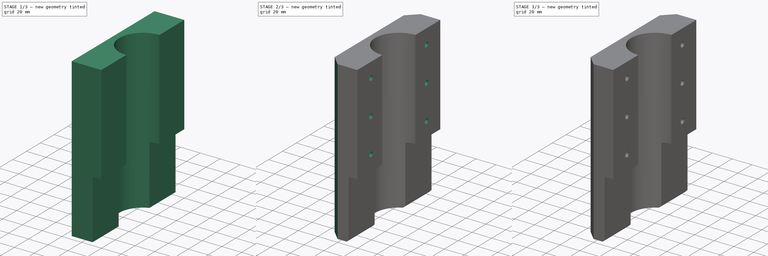
[diagram: build sequence overview — one tinted view per stage of 3, left to right]
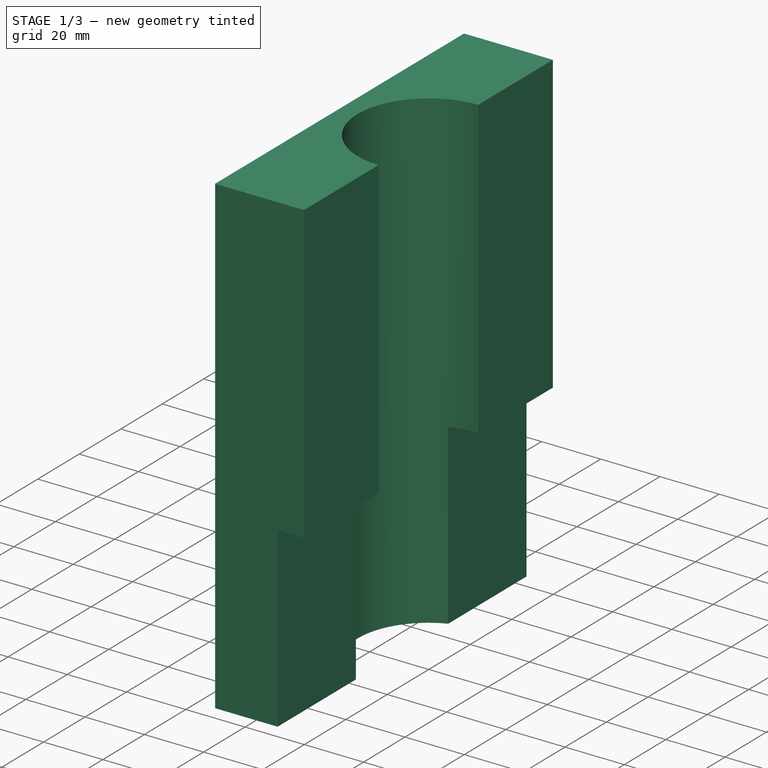
[diagram: stage 1 of 3 — iso view after this stage's code; geometry added in this stage tinted green]
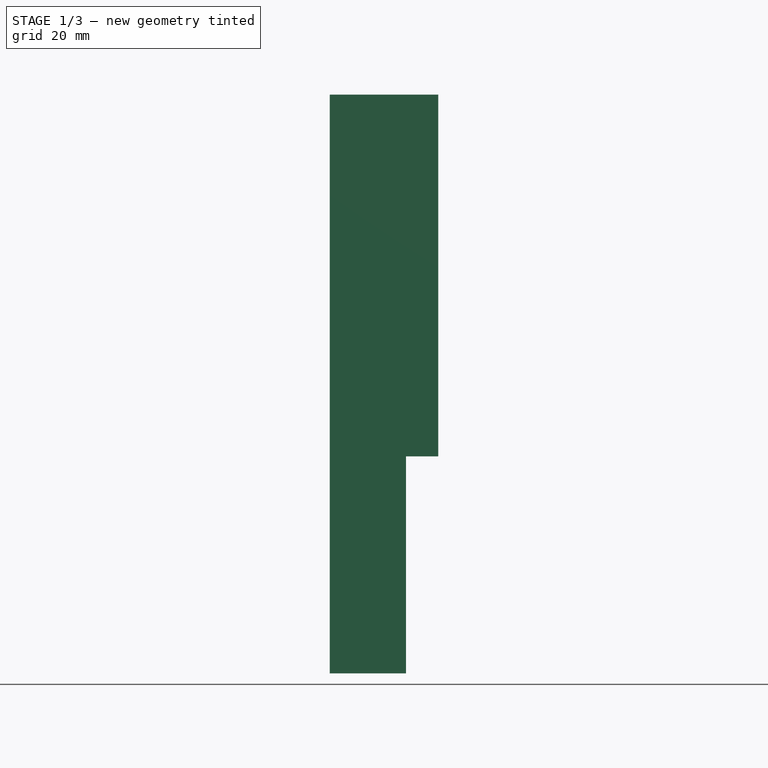
[diagram: stage 1 of 3 — front view after this stage's code; geometry added in this stage tinted green]
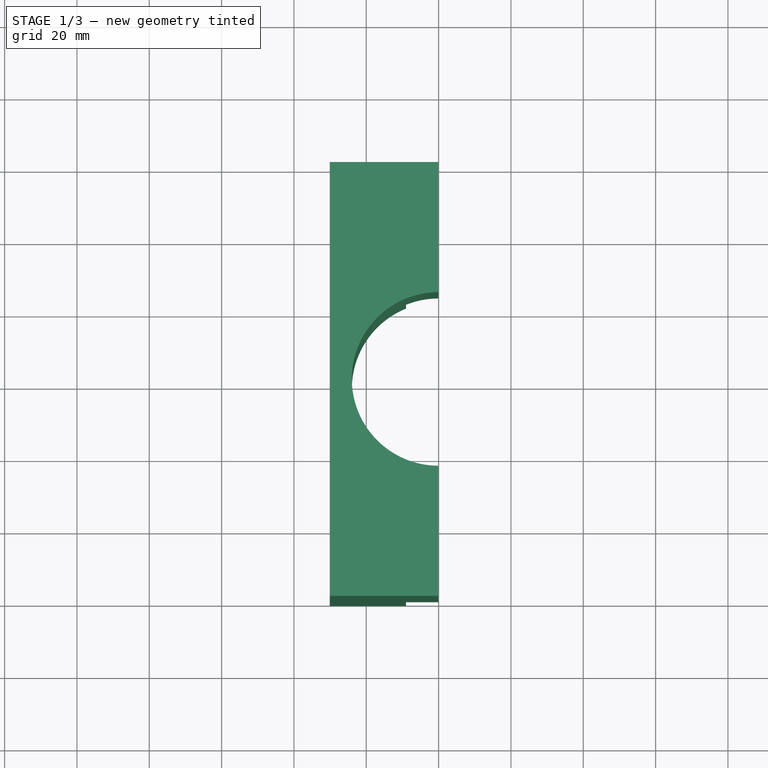
[diagram: stage 1 of 3 — top view after this stage's code; geometry added in this stage tinted green]
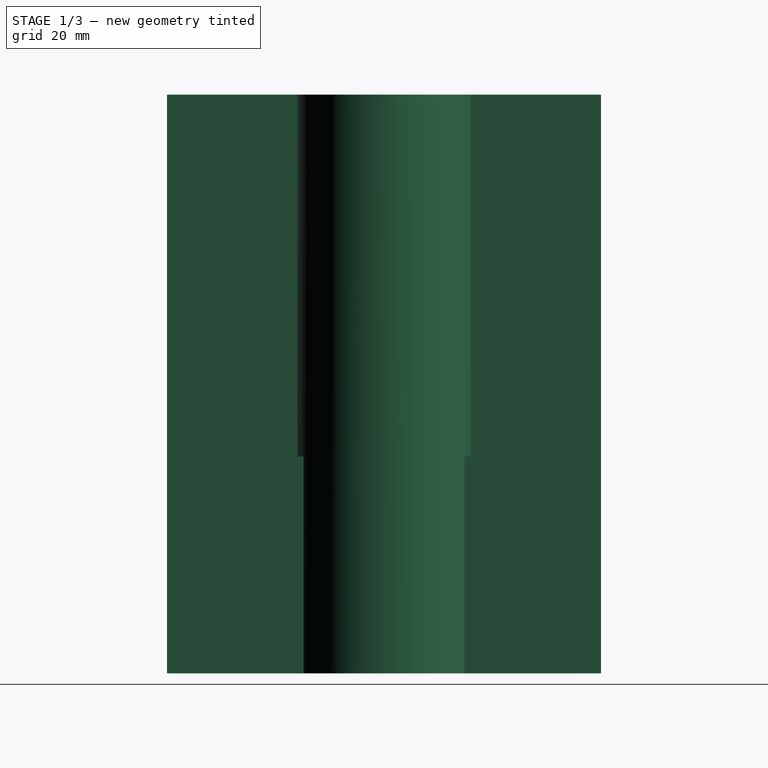
[diagram: stage 1 of 3 — right view after this stage's code; geometry added in this stage tinted green]
FCSTD DOCUMENT  (FreeCAD 0.19R23141 (Git))
Label: router_jig
License: All rights reserved
LicenseURL: http://en.wikipedia.org/wiki/All_rights_reserved
objects: Sketcher::SketchObject×4, PartDesign::Chamfer×3, PartDesign::Pad×2, PartDesign::Pocket×1, PartDesign::Hole×1, PartDesign::Body×1
note: 19 computed .brp shape members not serialized (recipe doc carries the construction recipe); baked Part::Feature solids carry a one-line shape summary decoded from their .brp

FEATURE [Sketcher::SketchObject] Sketch
  MapMode = 5
  Support = -> [XY_Plane]
  sketch-geometry (7):
    g0: ArcOfCircle CenterX=0 CenterY=0 CenterZ=0 NormalX=0 NormalY=0 NormalZ=1 AngleXU=0 Radius=24 StartAngle=1.57496 EndAngle=4.70822
    g1: LineSegment [constr] StartX=-0.1 StartY=23.9998 StartZ=0 EndX=-0.1 EndY=-23.9998 EndZ=0
    g2: LineSegment StartX=-30.1 StartY=60 StartZ=0 EndX=-30.1 EndY=-60 EndZ=0
    g3: LineSegment StartX=-30.1 StartY=-60 StartZ=0 EndX=-0.1 EndY=-60 EndZ=0
    g4: LineSegment StartX=-0.1 StartY=-60 StartZ=0 EndX=-0.1 EndY=-23.9998 EndZ=0
    g5: LineSegment StartX=-30.1 StartY=60 StartZ=0 EndX=-0.1 EndY=60 EndZ=0
    g6: LineSegment StartX=-0.1 StartY=60 StartZ=0 EndX=-0.1 EndY=23.9998 EndZ=0
  constraints (20):
    c: Coincident(g0,g-1)
    c: Coincident(g1,g0)
    c: Coincident(g1,g0)
    c: Vertical(g1)
    c: Diameter(g0) = 48
    c: DistanceX(g0,g0) = 0.1
    c: Vertical(g2)
    c: Coincident(g2,g3)
    c: Horizontal(g3)
    c: Coincident(g3,g4)
    c: Coincident(g4,g0)
    c: Coincident(g2,g5)
    c: Horizontal(g5)
    c: Coincident(g5,g6)
    c: Coincident(g6,g0)
    c: Vertical(g6)
    c: Vertical(g4)
    c: Equal(g4,g6)
    c: DistanceX(g5,g5) = 30
    c: DistanceY(g2,g2) = 120
FEATURE [PartDesign::Pad] Pad
  Direction = (1,1,1)
  Length = 160
  Length2 = 100
  Profile = -> Sketch
  Type = 0
FEATURE [Sketcher::SketchObject] Sketch001
  MapMode = 5
  Support = -> [XY_Plane]
  sketch-geometry (4):
    g0: LineSegment StartX=-9 StartY=93.2327 StartZ=0 EndX=0 EndY=93.2327 EndZ=0
    g1: LineSegment StartX=0 StartY=93.2327 StartZ=0 EndX=0 EndY=-78.9603 EndZ=0
    g2: LineSegment StartX=0 StartY=-78.9603 StartZ=0 EndX=-9 EndY=-78.9603 EndZ=0
    g3: LineSegment StartX=-9 StartY=-78.9603 StartZ=0 EndX=-9 EndY=93.2327 EndZ=0
  constraints (10):
    c: Coincident(g0,g1)
    c: Coincident(g1,g2)
    c: Coincident(g2,g3)
    c: Coincident(g3,g0)
    c: Horizontal(g0)
    c: Horizontal(g2)
    c: Vertical(g1)
    c: Vertical(g3)
    c: PointOnObject(g1,g-2)
    c: DistanceX(g2,g2) = 9
FEATURE [PartDesign::Pocket] Pocket
  BaseFeature = -> Pad
  Length = 60
  Length2 = 100
  Profile = -> Sketch001
  Reversed = true
  Type = 0
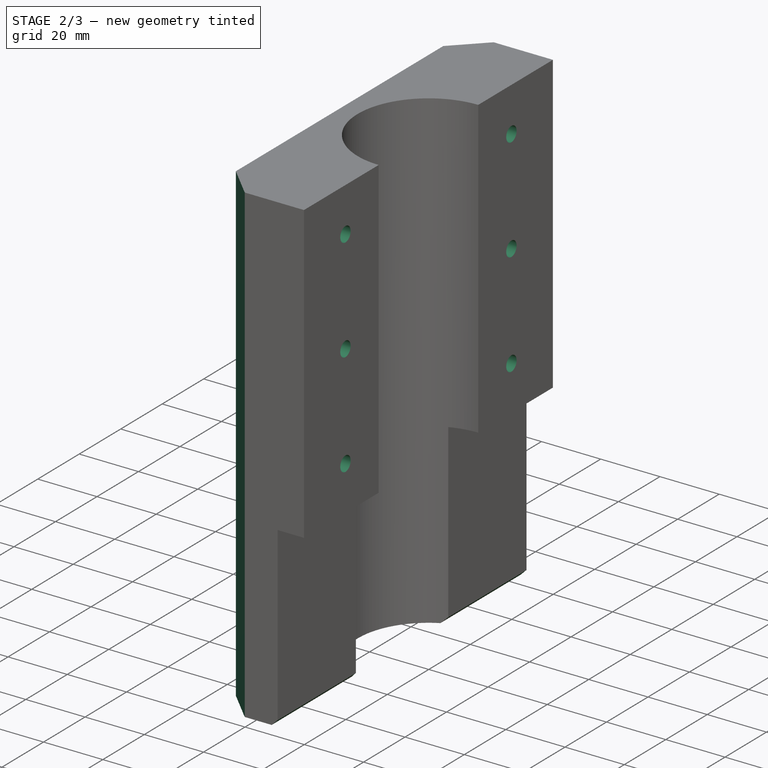
[diagram: stage 2 of 3 — iso view after this stage's code; geometry added in this stage tinted green]
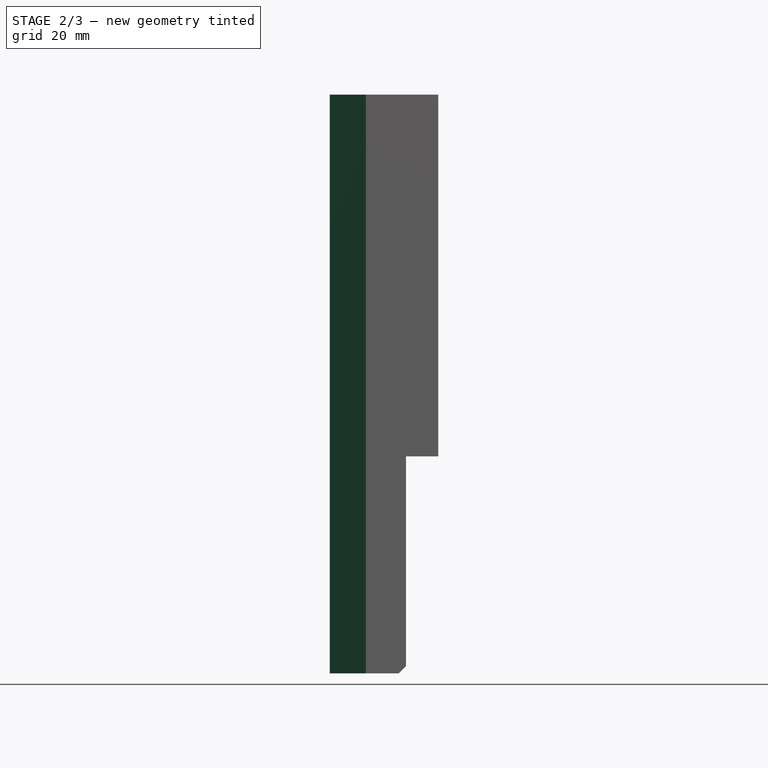
[diagram: stage 2 of 3 — front view after this stage's code; geometry added in this stage tinted green]
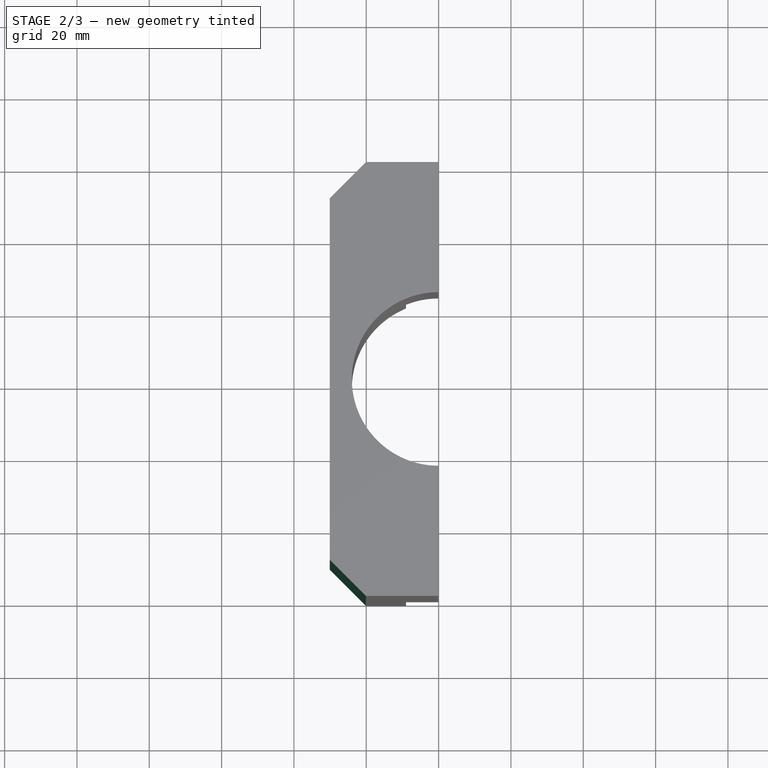
[diagram: stage 2 of 3 — top view after this stage's code; geometry added in this stage tinted green]
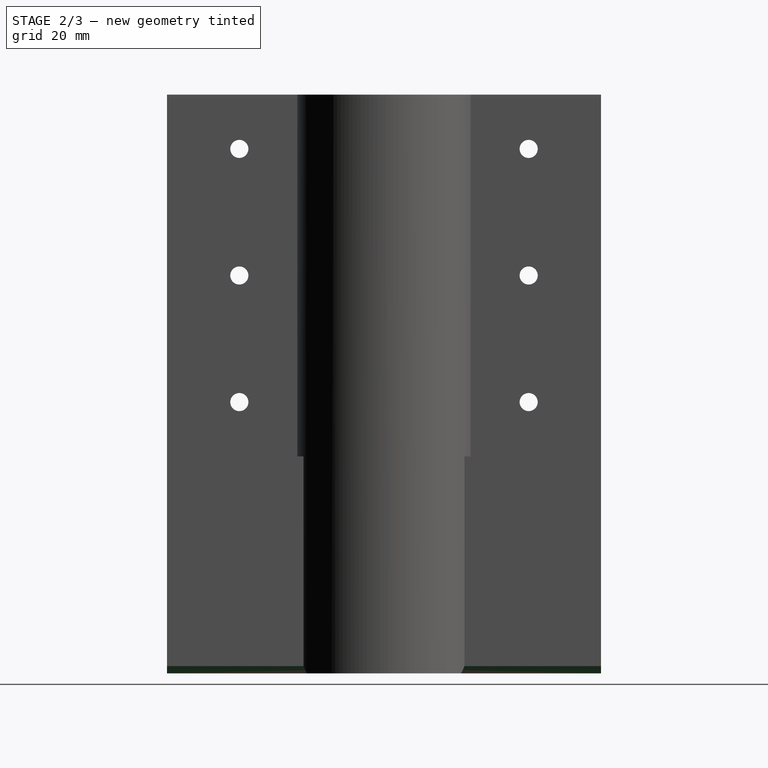
[diagram: stage 2 of 3 — right view after this stage's code; geometry added in this stage tinted green]
FEATURE [PartDesign::Chamfer] Chamfer
  Angle = 45
  Base = -> Pocket [Edge6,Edge22]
  BaseFeature = -> Pocket
  ChamferType = 0
  FlipDirection = false
  Size = 10
  Size2 = 1
  SupportTransform = false
FEATURE [PartDesign::Chamfer] Chamfer001
  Angle = 45
  Base = -> Chamfer [Edge12,Edge11]
  BaseFeature = -> Chamfer
  ChamferType = 0
  FlipDirection = false
  Size = 2
  Size2 = 1
  SupportTransform = false
FEATURE [Sketcher::SketchObject] Sketch002
  MapMode = 5
  Placement = pos=(-30.1,0,0) rot=(0.57735,-0.57735,-0.57735;2.0944rad)
  Support = -> [Chamfer001]
  sketch-geometry (15):
    g0: Circle CenterX=-40 CenterY=145 CenterZ=0 NormalX=0 NormalY=0 NormalZ=1 AngleXU=0 Radius=5
    g1: Circle CenterX=-40 CenterY=75 CenterZ=0 NormalX=0 NormalY=0 NormalZ=1 AngleXU=0 Radius=5
    g2: Circle CenterX=40 CenterY=145 CenterZ=0 NormalX=0 NormalY=0 NormalZ=1 AngleXU=0 Radius=5
    g3: Circle CenterX=40 CenterY=75 CenterZ=0 NormalX=0 NormalY=0 NormalZ=1 AngleXU=0 Radius=5
    g4: LineSegment [constr] StartX=-40 StartY=145 StartZ=0 EndX=40 EndY=145 EndZ=0
    g5: LineSegment [constr] StartX=40 StartY=145 StartZ=0 EndX=40 EndY=75 EndZ=0
    g6: LineSegment [constr] StartX=40 StartY=75 StartZ=0 EndX=-40 EndY=75 EndZ=0
    g7: LineSegment [constr] StartX=-40 StartY=75 StartZ=0 EndX=-40 EndY=145 EndZ=0
    g8: LineSegment [constr] StartX=-40 StartY=145 StartZ=0 EndX=0 EndY=110 EndZ=0
    g9: LineSegment [constr] StartX=0 StartY=110 StartZ=0 EndX=40 EndY=145 EndZ=0
    g10: LineSegment [constr] StartX=-40 StartY=75 StartZ=0 EndX=0 EndY=110 EndZ=0
    g11: LineSegment [constr] StartX=-40 StartY=110 StartZ=0 EndX=0 EndY=110 EndZ=0
    g12: LineSegment [constr] StartX=0 StartY=110 StartZ=0 EndX=40 EndY=110 EndZ=0
    g13: Circle CenterX=-40 CenterY=110 CenterZ=0 NormalX=0 NormalY=0 NormalZ=1 AngleXU=0 Radius=5
    g14: Circle CenterX=40 CenterY=110 CenterZ=0 NormalX=0 NormalY=0 NormalZ=1 AngleXU=0 Radius=5
  constraints (37):
    c: Coincident(g4,g5)
    c: Coincident(g5,g6)
    c: Coincident(g6,g7)
    c: Coincident(g7,g4)
    c: Horizontal(g4)
    c: Horizontal(g6)
    c: Vertical(g5)
    c: Vertical(g7)
    c: Coincident(g4,g0)
    c: Coincident(g5,g3)
    c: Coincident(g4,g2)
    c: Coincident(g1,g6)
    c: Diameter(g1) = 10
    c: Equal(g1,g0)
    c: Equal(g1,g2)
    c: Equal(g1,g3)
    c: Coincident(g8,g0)
    c: PointOnObject(g8,g-2)
    c: Coincident(g8,g9)
    c: Coincident(g9,g2)
    c: Coincident(g10,g1)
    c: Coincident(g10,g8)
    c: Equal(g8,g10)
    c: Equal(g10,g9)
    c: DistanceY(g-1,g8) = 110
    c: DistanceY(g7,g7) = 70
    c: DistanceX(g4,g4) = 80
    c: PointOnObject(g11,g7)
    c: Coincident(g11,g8)
    c: Horizontal(g11)
    c: Coincident(g11,g12)
    c: PointOnObject(g12,g5)
    c: Horizontal(g12)
    c: Coincident(g13,g11)
    c: Coincident(g14,g12)
    c: Equal(g14,g13)
    c: Equal(g13,g1)
FEATURE [PartDesign::Hole] Hole
  BaseFeature = -> Chamfer001
  Depth = 25
  DepthType = 1
  Diameter = 5
  DrillPoint = 0
  DrillPointAngle = 118
  HoleCutCountersinkAngle = 90
  HoleCutDepth = 22
  HoleCutDiameter = 16
  HoleCutType = 1
  ModelActualThread = false
  Profile = -> Sketch002
  Tapered = false
  TaperedAngle = 90
  ThreadAngle = 0
  ThreadClass = 0
  ThreadCutOffInner = 0
  ThreadCutOffOuter = 0
  ThreadDirection = 0
  ThreadFit = 0
  ThreadPitch = 0
  ThreadSize = 0
  ThreadType = 0
  Threaded = false
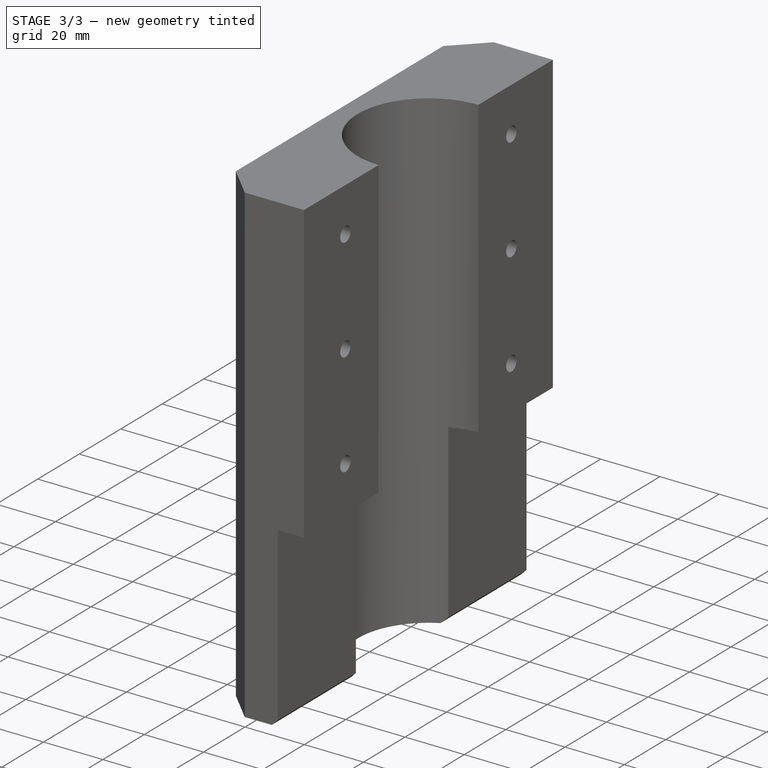
[diagram: stage 3 of 3 — iso view after this stage's code; geometry added in this stage tinted green]
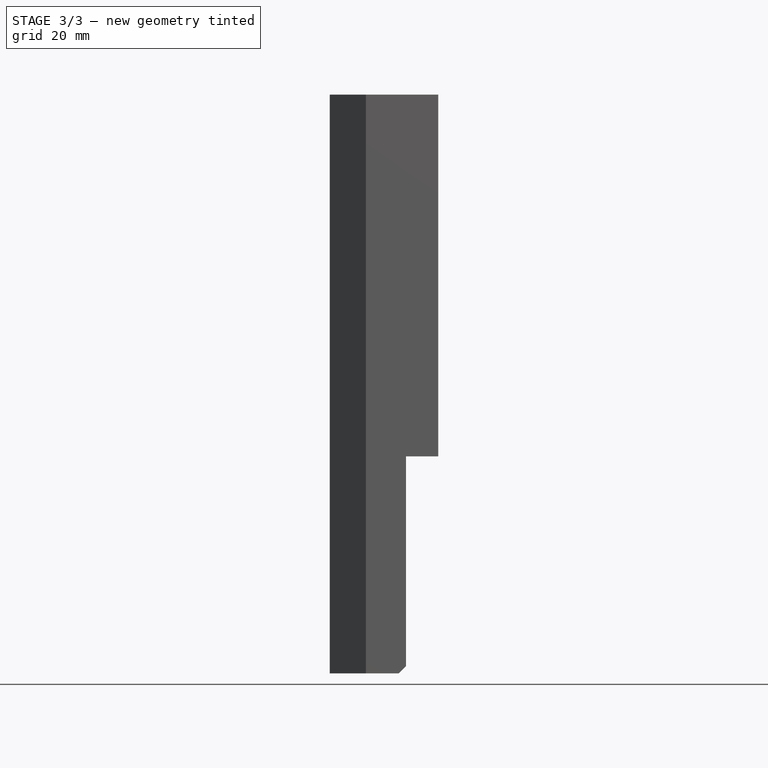
[diagram: stage 3 of 3 — front view after this stage's code; geometry added in this stage tinted green]
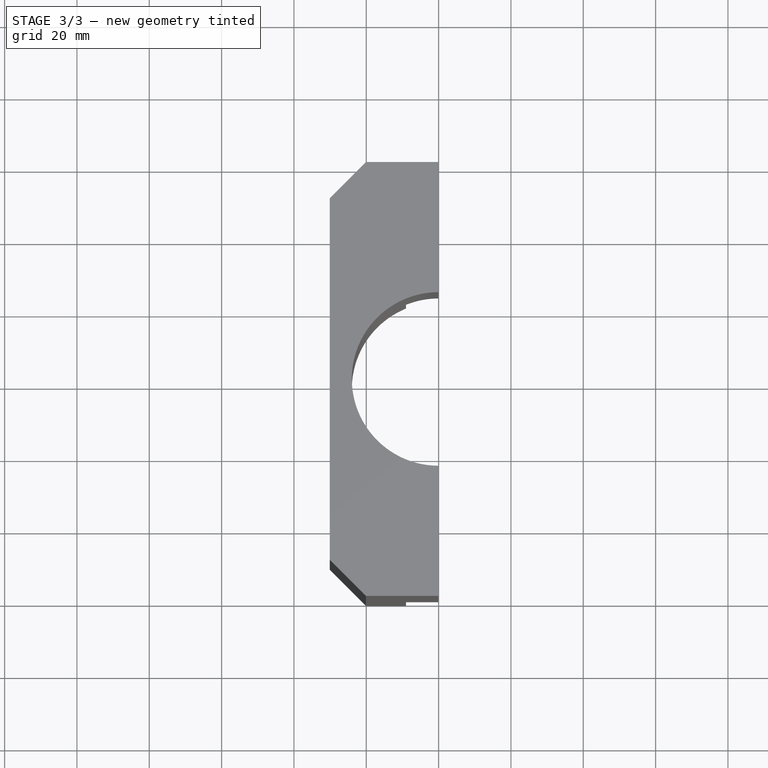
[diagram: stage 3 of 3 — top view after this stage's code; geometry added in this stage tinted green]
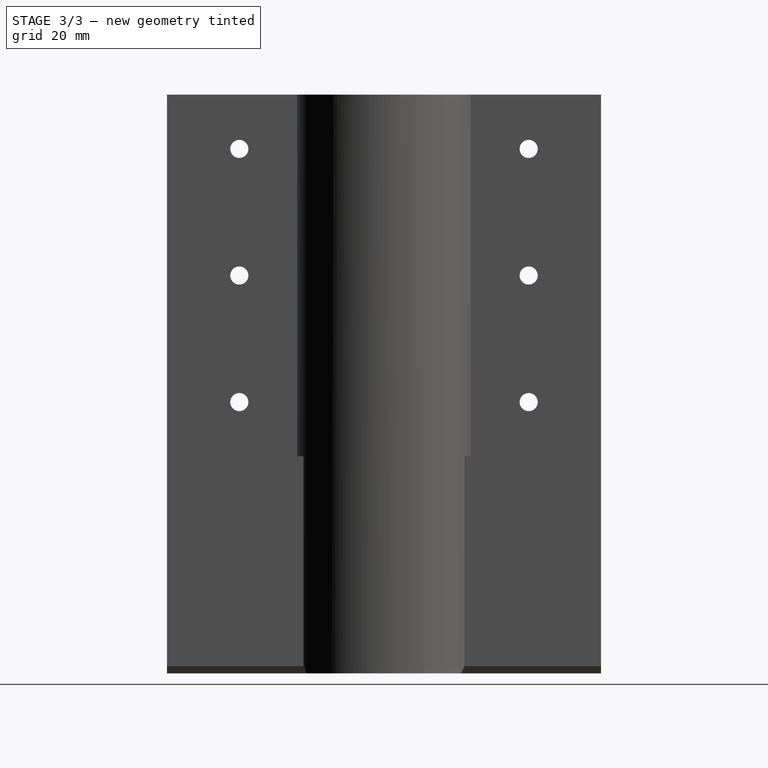
[diagram: stage 3 of 3 — right view after this stage's code; geometry added in this stage tinted green]
FEATURE [Sketcher::SketchObject] Sketch003
  ExternalGeometry = -> [Hole]
  MapMode = 5
  Placement = pos=(-8.1,0,0) rot=(0.57735,-0.57735,-0.57735;2.0944rad)
  Support = -> [Hole]
  sketch-geometry (24):
    g0: LineSegment StartX=-35.9506 StartY=102.986 StartZ=0 EndX=-31.9011 EndY=110 EndZ=0
    g1: LineSegment StartX=-31.9011 StartY=110 StartZ=0 EndX=-35.9506 EndY=117.014 EndZ=0
    g2: LineSegment StartX=-35.9506 StartY=117.014 StartZ=0 EndX=-44.0494 EndY=117.014 EndZ=0
    g3: LineSegment StartX=-44.0494 StartY=117.014 StartZ=0 EndX=-48.0989 EndY=110 EndZ=0
    g4: LineSegment StartX=-48.0989 StartY=110 StartZ=0 EndX=-44.0494 EndY=102.986 EndZ=0
    g5: LineSegment StartX=-44.0494 StartY=102.986 StartZ=0 EndX=-35.9506 EndY=102.986 EndZ=0
    g6: Circle [constr] CenterX=-40 CenterY=110 CenterZ=0 NormalX=0 NormalY=0 NormalZ=1 AngleXU=0 Radius=8.09889
    g7: LineSegment StartX=-35.9506 StartY=67.9862 StartZ=0 EndX=-31.9011 EndY=75 EndZ=0
    g8: LineSegment StartX=-31.9011 StartY=75 StartZ=0 EndX=-35.9506 EndY=82.0138 EndZ=0
    g9: LineSegment StartX=-35.9506 StartY=82.0138 StartZ=0 EndX=-44.0494 EndY=82.0138 EndZ=0
    g10: LineSegment StartX=-44.0494 StartY=82.0138 StartZ=0 EndX=-48.0989 EndY=75 EndZ=0
    g11: LineSegment StartX=-48.0989 StartY=75 StartZ=0 EndX=-44.0494 EndY=67.9862 EndZ=0
    g12: LineSegment StartX=-44.0494 StartY=67.9862 StartZ=0 EndX=-35.9506 EndY=67.9862 EndZ=0
    g13: Circle [constr] CenterX=-40 CenterY=75 CenterZ=0 NormalX=0 NormalY=0 NormalZ=1 AngleXU=0 Radius=8.09889
    g14: Circle CenterX=-40 CenterY=110 CenterZ=0 NormalX=0 NormalY=0 NormalZ=1 AngleXU=0 Radius=8.5
    g15: Circle CenterX=-40 CenterY=75 CenterZ=0 NormalX=0 NormalY=0 NormalZ=1 AngleXU=0 Radius=8.5
    g16: LineSegment StartX=-35.8804 StartY=137.865 StartZ=0 EndX=-31.7609 EndY=145 EndZ=0
    g17: LineSegment StartX=-31.7609 StartY=145 StartZ=0 EndX=-35.8804 EndY=152.135 EndZ=0
    g18: LineSegment StartX=-35.8804 StartY=152.135 StartZ=0 EndX=-44.1196 EndY=152.135 EndZ=0
    g19: LineSegment StartX=-44.1196 StartY=152.135 StartZ=0 EndX=-48.2391 EndY=145 EndZ=0
    g20: LineSegment StartX=-48.2391 StartY=145 StartZ=0 EndX=-44.1196 EndY=137.865 EndZ=0
    g21: LineSegment StartX=-44.1196 StartY=137.865 StartZ=0 EndX=-35.8804 EndY=137.865 EndZ=0
    g22: Circle [constr] CenterX=-40 CenterY=145 CenterZ=0 NormalX=0 NormalY=0 NormalZ=1 AngleXU=0 Radius=8.23911
    g23: Circle CenterX=-40 CenterY=145 CenterZ=0 NormalX=0 NormalY=0 NormalZ=1 AngleXU=0 Radius=8.5
  constraints (50):
    c: Coincident(g0,g1)
    c: Coincident(g1,g2)
    c: Coincident(g2,g3)
    c: Coincident(g3,g4)
    c: Coincident(g4,g5)
    c: Coincident(g5,g0)
    c: Equal(g0, g1-g5) x5
    c: PointOnObject(g0,g6)
    c: PointOnObject(g1,g6)
    c: PointOnObject(g2,g6)
    c: PointOnObject(g3,g6)
    c: PointOnObject(g4,g6)
    c: PointOnObject(g5,g6)
    c: Coincident(g7,g8)
    c: Coincident(g8,g9)
    c: Coincident(g9,g10)
    c: Coincident(g10,g11)
    c: Coincident(g11,g12)
    c: Coincident(g12,g7)
    c: Equal(g7, g8-g12) x5
    c: PointOnObject(g7,g13)
    c: PointOnObject(g8,g13)
    c: PointOnObject(g9,g13)
    c: PointOnObject(g10,g13)
    c: PointOnObject(g11,g13)
    c: PointOnObject(g12,g13)
    c: Horizontal(g9)
    c: Horizontal(g2)
    c: Equal(g2,g9)
    c: Coincident(g15,g13)
    c: Equal(g15,g14)
    c: Coincident(g14,g6)
    c: Coincident(g16,g17)
    c: Coincident(g17,g18)
    c: Coincident(g18,g19)
    c: Coincident(g19,g20)
    c: Coincident(g20,g21)
    c: Coincident(g21,g16)
    c: Equal(g16, g17-g21) x5
    c: PointOnObject(g16,g22)
    c: PointOnObject(g17,g22)
    c: PointOnObject(g18,g22)
    c: PointOnObject(g19,g22)
    c: PointOnObject(g20,g22)
    c: PointOnObject(g21,g22)
    c: Horizontal(g18)
    c: Coincident(g23,g22)
    c: Coincident(g23,g-3)
    c: Coincident(g14,g-4)
    c: Coincident(g15,g-5)
FEATURE [PartDesign::Pad] Pad001
  BaseFeature = -> Hole
  Direction = (1,1,1)
  Length = 22
  Length2 = 100
  Profile = -> Sketch003
  Refine = true
  Type = 0
FEATURE [PartDesign::Chamfer] Chamfer002
  Angle = 45
  Base = -> Pad001 [Edge4,Edge12,Edge8]
  BaseFeature = -> Pad001
  ChamferType = 0
  FlipDirection = false
  Size = 3
  Size2 = 1
  SupportTransform = false
FEATURE [PartDesign::Body] Body
  Group = -> [Sketch,Pad,Sketch001,Pocket,Chamfer,Chamfer001,Sketch002,Hole,Sketch003,Pad001,Chamfer002]
  Origin = -> Origin
  Tip = -> Chamfer002
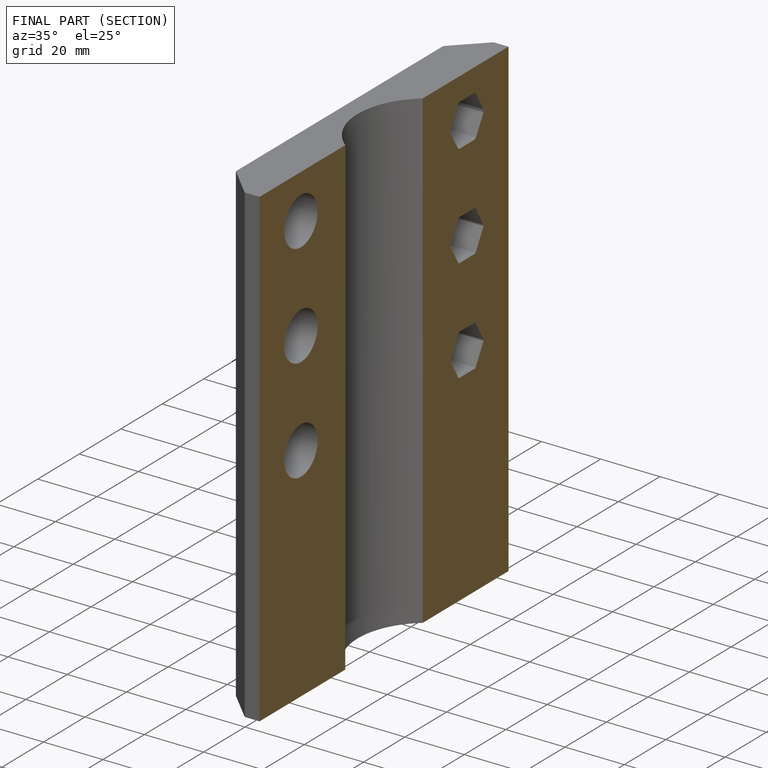
[diagram: finished part — half-section view (interior)]
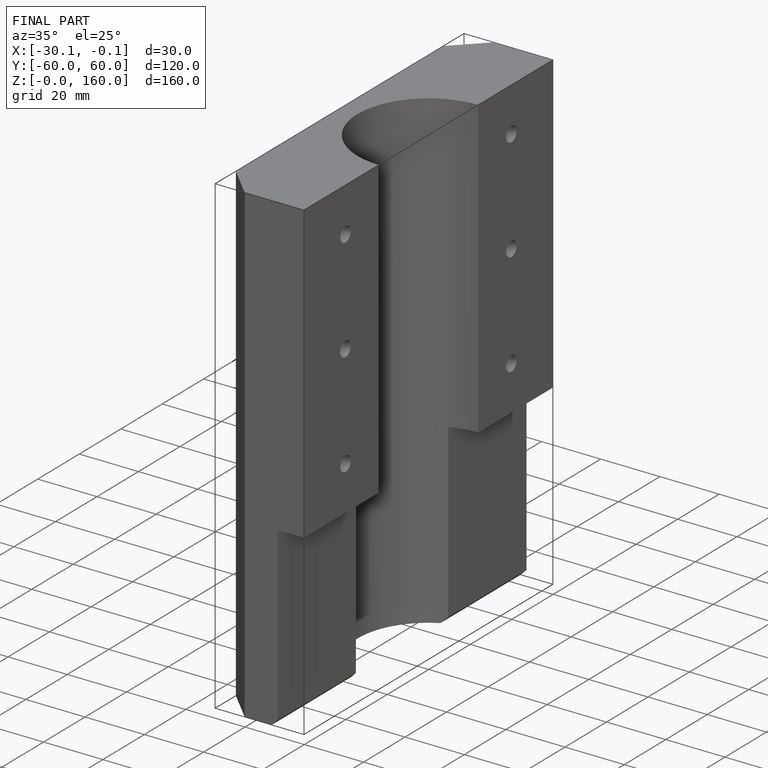
[diagram: finished part — iso view with bounding-box wireframe]
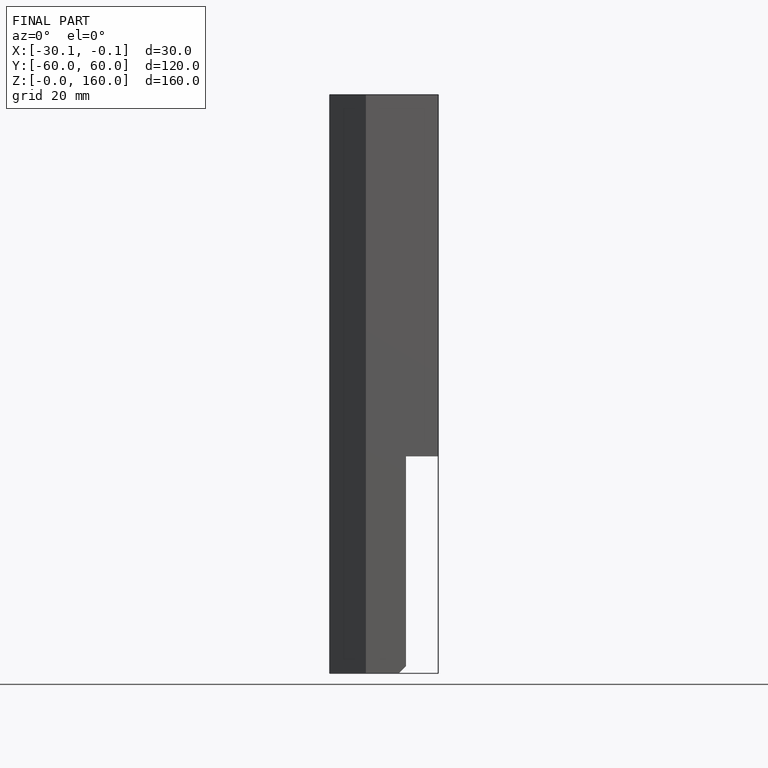
[diagram: finished part — front view with bounding-box wireframe]
